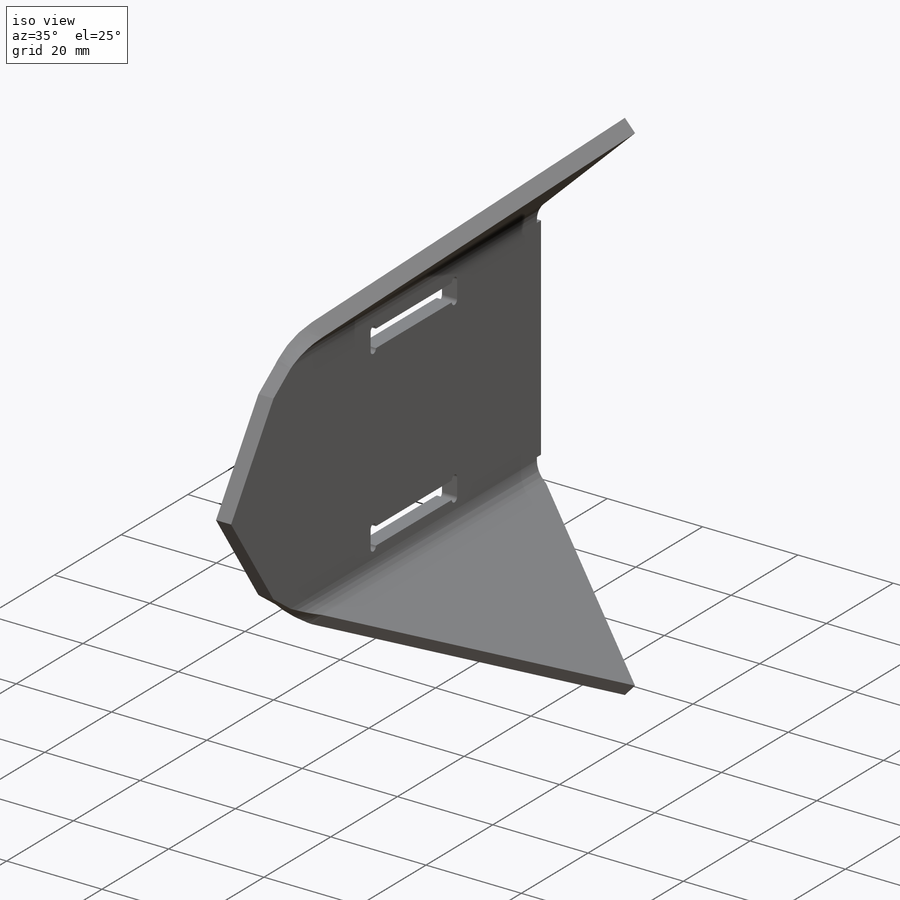
[diagram: iso view]
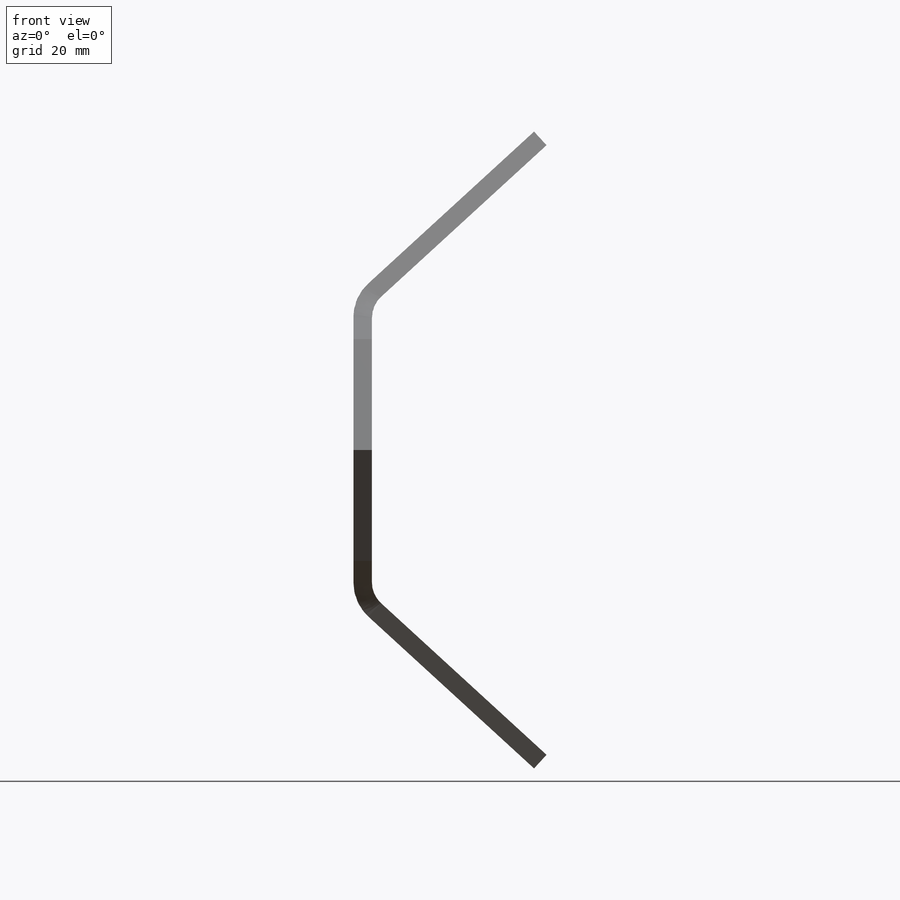
[diagram: front view]
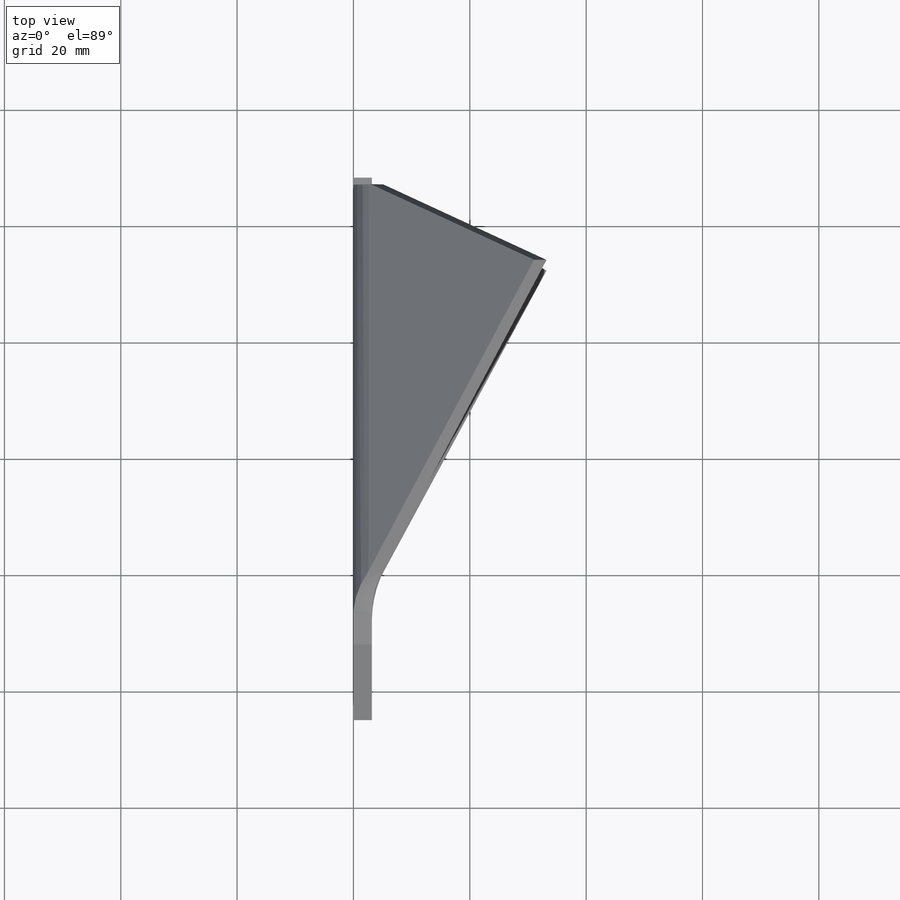
[diagram: top view]
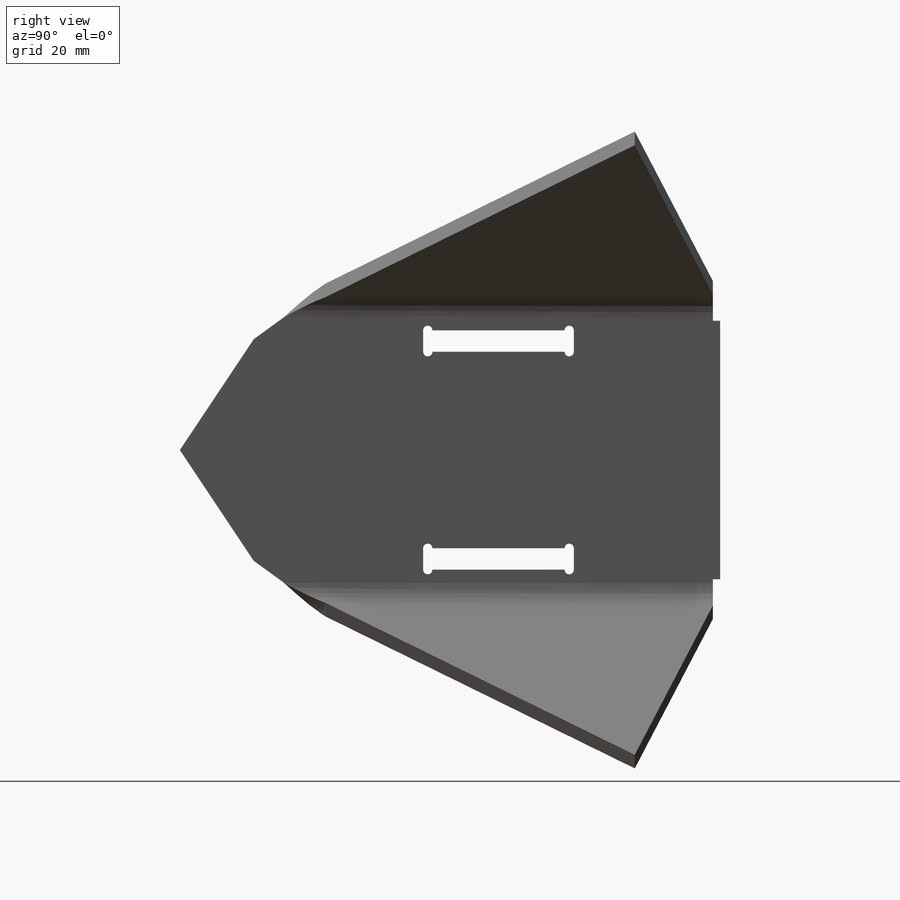
[diagram: right view]
SOLIDWORKS PART (.sldprt)
format: sldprt  version: not decoded by parser v0  size: 731,136 bytes
history: native  units: mm
features: sketch x13, sheet_metal_op x3, extrude x2, cut_extrude x2, material x1 + 4 further entries (+13 scaffold rows collapsed; 1 parser-record rows omitted)
feature tree (39):
  scaffold x13  (default folders/planes/origin — collapsed)
  material  "Plain Carbon Steel"
  sketch  "Sketch3"  dims[c1.D1=19.05mm c1.D2=~2.38125mm c1.D3=32.385mm c1.D4=~15.08125mm c1.D5=~33.11525mm c1.D6=~45.81525mm c1.D7=25.4mm c1.D8=3.175mm c1.D9=25.4mm c1.D10=3.175mm c2.D4=~44.67225mm c2.D10=1.143mm]
  extrude  "Boss-Extrude1"  Depth=3.175mm
  sketch  "Sketch12"  dims[c1.D1=~6.407951mm c1.D2=1.143mm c2.D1=~6.407951mm c2.D2=1.143mm]
  extrude  "Boss-Extrude2"  Depth=4.7625mm
  sketch  "Sketch8"  dims[D1=~40.269668mm]
  parser-record x1  (decoder bookkeeping rows leaked as tree rows — omitted from the tree; the rows remain in map.json)
  "SketchBend2"
  sketch  "Sketch9"  dims[c1.D1=3.175mm c1.D2=25.4mm c2.D1=3.175mm c2.D2=25.4mm c3.D1=0.254mm]
  cut_extrude  "Cut-Extrude1"  [1 undecoded]
  sketch  "Sketch10"  dims[D1=1.5875mm]
  cut_extrude  "Cut-Extrude2"  [1 undecoded]
  sketch  "Bend-Lines1"
  sketch  "Bounding-Box1"
  sheet_metal_op  "Sheet-Metal2"
  "Flat-Pattern2"
  sketch  "Bend-Lines2"
  sketch  "Bounding-Box2"  dims[Sketch Transformation1=0.0]
  sheet_metal_op  "Sheet-Metal3"
  "Flat-Pattern2"
  sketch  "Bend-Lines2"
  sketch  "Bounding-Box2"  dims[Sketch Transformation1=0.0]
  sheet_metal_op  "Sheet-Metal4"
  "Flat-Pattern2"
  sketch  "Bend-Lines2"
  sketch  "Bounding-Box2"  dims[Sketch Transformation1=0.0]
decode coverage: 10 of 20 modeling features carry decoded parameters; 4 rows unclassified (native names shown)
note: ~ marks probable driven/reference dimensions
note: 2 parameter values undecoded
note: suppression state not decoded; provenance and decode notes live in map.json
